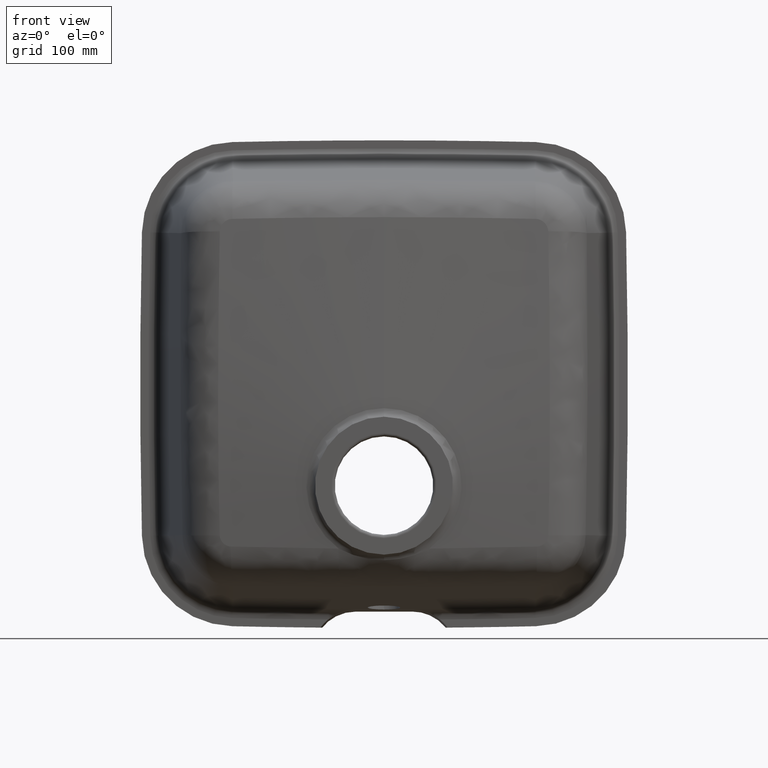
[diagram: clean part render]
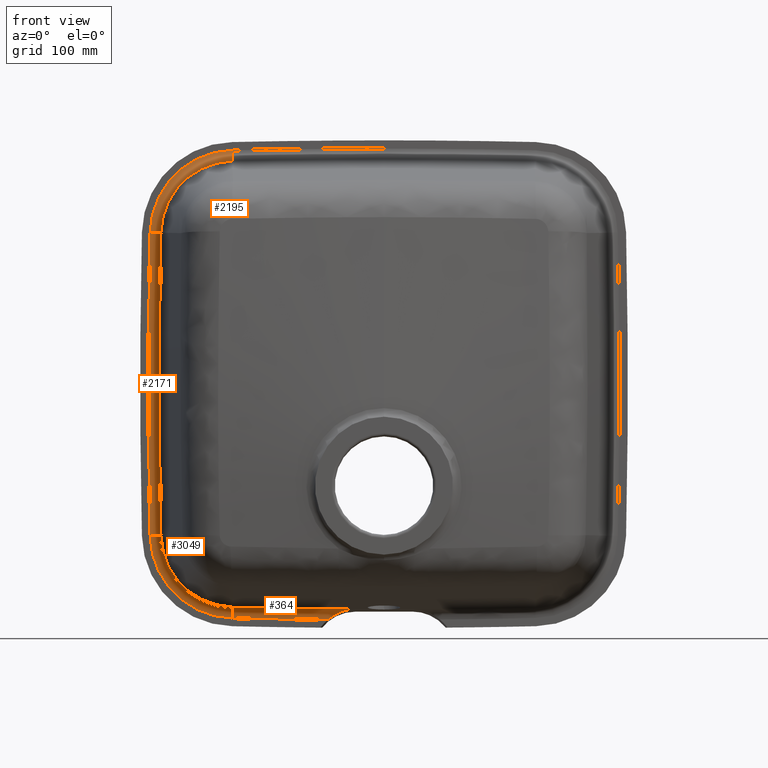
[diagram: same view with one multi-face feature highlighted, each face labeled with its STEP entity id]
A machine part, front view. The highlighted faces form ONE feature: a constant-radius fillet chain: 4 tangent blend faces with common blend radius 10 mm. The faces share edges in the B-rep.
Their STEP definitions:
[1] entity #2195 (Torus):
#46 = CIRCLE ( 'NONE', #2565, 10.00000000000000700 ) ;
#61 = CARTESIAN_POINT ( 'NONE',  ( -139.6885706518969000, 196.0000000000000000, 215.3918085507889100 ) ) ;
#184 = VERTEX_POINT ( 'NONE', #3569 ) ;
#319 = EDGE_CURVE ( 'NONE', #3838, #184, #4029, .T. ) ;
#448 = DIRECTION ( 'NONE',  ( 0.9997515135550633100, -6.712419017838286700E-016, 0.02229150386044505600 ) ) ;
#590 = CIRCLE ( 'NONE', #4128, 77.44893616931270200 ) ;
#749 = DIRECTION ( 'NONE',  ( 0.02229150386044430000, 0.0000000000000000000, -0.9997515135550632000 ) ) ;
#779 = DIRECTION ( 'NONE',  ( -0.0000000000000000000, -1.000000000000000000, -0.0000000000000000000 ) ) ;
#1084 = CARTESIAN_POINT ( 'NONE',  ( -137.9621173922873500, 187.2186934340514900, 137.9621173922891400 ) ) ;
#1142 = CARTESIAN_POINT ( 'NONE',  ( -215.3918085507872900, 186.0000000000000000, 139.6885706518918700 ) ) ;
#1339 = ORIENTED_EDGE ( 'NONE', *, *, #1546, .F. ) ;
#1394 = CIRCLE ( 'NONE', #2663, 67.52347465289948000 ) ;
#1400 = CARTESIAN_POINT ( 'NONE',  ( -137.9621173922873500, 186.0000000000000000, 137.9621173922891400 ) ) ;
#1415 = CARTESIAN_POINT ( 'NONE',  ( -137.9621173922873500, 196.0000000000000000, 137.9621173922891400 ) ) ;
#1546 = EDGE_CURVE ( 'NONE', #184, #1625, #590, .T. ) ;
#1553 = AXIS2_PLACEMENT_3D ( 'NONE', #1142, #3585, #4338 ) ;
#1625 = VERTEX_POINT ( 'NONE', #61 ) ;
#1713 = ORIENTED_EDGE ( 'NONE', *, *, #3995, .F. ) ;
#1791 = DIRECTION ( 'NONE',  ( 0.0000000000000000000, 0.0000000000000000000, 1.000000000000000000 ) ) ;
#1834 = DIRECTION ( 'NONE',  ( 0.0000000000000000000, 0.0000000000000000000, 1.000000000000000000 ) ) ;
#1914 = AXIS2_PLACEMENT_3D ( 'NONE', #1400, #2208, #4296 ) ;
#2043 = ORIENTED_EDGE ( 'NONE', *, *, #2355, .T. ) ;
#2195 = ADVANCED_FACE ( 'NONE', ( #2436 ), #3040, .F. ) ;
#2208 = DIRECTION ( 'NONE',  ( 0.0000000000000000000, 1.000000000000000000, 0.0000000000000000000 ) ) ;
#2355 = EDGE_CURVE ( 'NONE', #3795, #1625, #46, .T. ) ;
#2436 = FACE_OUTER_BOUND ( 'NONE', #3238, .T. ) ;
#2565 = AXIS2_PLACEMENT_3D ( 'NONE', #3263, #448, #749 ) ;
#2663 = AXIS2_PLACEMENT_3D ( 'NONE', #1084, #779, #1834 ) ;
#2950 = CARTESIAN_POINT ( 'NONE',  ( -139.4673171881870500, 187.2186934340514900, 205.4688133770222600 ) ) ;
#3040 = TOROIDAL_SURFACE ( 'NONE', #1914, 77.44893616931270200, 10.00000000000000000 ) ;
#3238 = EDGE_LOOP ( 'NONE', ( #2043, #1339, #3862, #1713 ) ) ;
#3263 = CARTESIAN_POINT ( 'NONE',  ( -139.6885706518969000, 185.9999999999999100, 215.3918085507889700 ) ) ;
#3569 = CARTESIAN_POINT ( 'NONE',  ( -215.3918085507872600, 196.0000000000000000, 139.6885706518922100 ) ) ;
#3585 = DIRECTION ( 'NONE',  ( 0.02229150386041323400, -3.613515370281048100E-014, 0.9997515135550639800 ) ) ;
#3795 = VERTEX_POINT ( 'NONE', #2950 ) ;
#3838 = VERTEX_POINT ( 'NONE', #4348 ) ;
#3862 = ORIENTED_EDGE ( 'NONE', *, *, #319, .F. ) ;
#3995 = EDGE_CURVE ( 'NONE', #3795, #3838, #1394, .T. ) ;
#4029 = CIRCLE ( 'NONE', #1553, 10.00000000000000000 ) ;
#4128 = AXIS2_PLACEMENT_3D ( 'NONE', #1415, #4216, #1791 ) ;
#4216 = DIRECTION ( 'NONE',  ( 0.0000000000000000000, 1.000000000000000000, 0.0000000000000000000 ) ) ;
#4296 = DIRECTION ( 'NONE',  ( 0.0000000000000000000, 0.0000000000000000000, 1.000000000000000000 ) ) ;
#4338 = DIRECTION ( 'NONE',  ( 0.9997515135550638600, 0.0000000000000000000, -0.02229150386041378600 ) ) ;
#4348 = CARTESIAN_POINT ( 'NONE',  ( -205.4688133770206900, 187.2186934340514900, 139.4673171881823900 ) ) ;
[2] entity #2171 (Torus):
#3 = DIRECTION ( 'NONE',  ( 0.0000000000000000000, 0.0000000000000000000, 1.000000000000000000 ) ) ;
#112 = ORIENTED_EDGE ( 'NONE', *, *, #512, .F. ) ;
#184 = VERTEX_POINT ( 'NONE', #3569 ) ;
#214 = VERTEX_POINT ( 'NONE', #3548 ) ;
#319 = EDGE_CURVE ( 'NONE', #3838, #184, #4029, .T. ) ;
#512 = EDGE_CURVE ( 'NONE', #2159, #184, #3765, .T. ) ;
#674 = DIRECTION ( 'NONE',  ( -0.0000000000000000000, -1.000000000000000000, -0.0000000000000000000 ) ) ;
#790 = CARTESIAN_POINT ( 'NONE',  ( 6049.500000000000000, 196.0000000000000000, 5.443532267332566500E-014 ) ) ;
#1040 = DIRECTION ( 'NONE',  ( 0.0000000000000000000, 0.0000000000000000000, 1.000000000000000000 ) ) ;
#1087 = DIRECTION ( 'NONE',  ( 0.02229150386044519800, 0.0000000000000000000, -0.9997515135550632000 ) ) ;
#1142 = CARTESIAN_POINT ( 'NONE',  ( -215.3918085507872900, 186.0000000000000000, 139.6885706518918700 ) ) ;
#1430 = CARTESIAN_POINT ( 'NONE',  ( 6049.500000000000000, 186.0000000000000000, 5.443532267332566500E-014 ) ) ;
#1553 = AXIS2_PLACEMENT_3D ( 'NONE', #1142, #3585, #4338 ) ;
#1653 = EDGE_CURVE ( 'NONE', #2159, #214, #3260, .T. ) ;
#1657 = AXIS2_PLACEMENT_3D ( 'NONE', #2777, #674, #3 ) ;
#1658 = AXIS2_PLACEMENT_3D ( 'NONE', #3186, #1087, #2236 ) ;
#1725 = TOROIDAL_SURFACE ( 'NONE', #2339, 6266.448936169313100, 10.00000000000000000 ) ;
#1750 = CARTESIAN_POINT ( 'NONE',  ( -215.3918085507870900, 196.0000000000000000, -139.6885706518942200 ) ) ;
#1926 = ORIENTED_EDGE ( 'NONE', *, *, #1653, .T. ) ;
#2146 = ORIENTED_EDGE ( 'NONE', *, *, #319, .T. ) ;
#2159 = VERTEX_POINT ( 'NONE', #1750 ) ;
#2171 = ADVANCED_FACE ( 'NONE', ( #4480 ), #1725, .F. ) ;
#2236 = DIRECTION ( 'NONE',  ( -0.9997515135550632000, 0.0000000000000000000, -0.02229150386044430000 ) ) ;
#2339 = AXIS2_PLACEMENT_3D ( 'NONE', #1430, #4206, #1040 ) ;
#2432 = CIRCLE ( 'NONE', #1657, 6256.523474652900400 ) ;
#2777 = CARTESIAN_POINT ( 'NONE',  ( 6049.500000000000000, 187.2186934340515200, 5.443532267332566500E-014 ) ) ;
#3186 = CARTESIAN_POINT ( 'NONE',  ( -215.3918085507870900, 186.0000000000000000, -139.6885706518942200 ) ) ;
#3208 = DIRECTION ( 'NONE',  ( 0.0000000000000000000, 0.0000000000000000000, 1.000000000000000000 ) ) ;
#3260 = CIRCLE ( 'NONE', #1658, 10.00000000000000700 ) ;
#3382 = EDGE_CURVE ( 'NONE', #3838, #214, #2432, .T. ) ;
#3417 = AXIS2_PLACEMENT_3D ( 'NONE', #790, #3616, #3208 ) ;
#3548 = CARTESIAN_POINT ( 'NONE',  ( -205.4688133770204700, 187.2186934340514900, -139.4673171881843800 ) ) ;
#3569 = CARTESIAN_POINT ( 'NONE',  ( -215.3918085507872600, 196.0000000000000000, 139.6885706518922100 ) ) ;
#3585 = DIRECTION ( 'NONE',  ( 0.02229150386041323400, -3.613515370281048100E-014, 0.9997515135550639800 ) ) ;
#3616 = DIRECTION ( 'NONE',  ( 0.0000000000000000000, 1.000000000000000000, 0.0000000000000000000 ) ) ;
#3649 = EDGE_LOOP ( 'NONE', ( #1926, #4287, #2146, #112 ) ) ;
#3765 = CIRCLE ( 'NONE', #3417, 6266.448936169313100 ) ;
#3838 = VERTEX_POINT ( 'NONE', #4348 ) ;
#4029 = CIRCLE ( 'NONE', #1553, 10.00000000000000000 ) ;
#4206 = DIRECTION ( 'NONE',  ( 0.0000000000000000000, 1.000000000000000000, 0.0000000000000000000 ) ) ;
#4287 = ORIENTED_EDGE ( 'NONE', *, *, #3382, .F. ) ;
#4338 = DIRECTION ( 'NONE',  ( 0.9997515135550638600, 0.0000000000000000000, -0.02229150386041378600 ) ) ;
#4348 = CARTESIAN_POINT ( 'NONE',  ( -205.4688133770206900, 187.2186934340514900, 139.4673171881823900 ) ) ;
#4480 = FACE_OUTER_BOUND ( 'NONE', #3649, .T. ) ;
[3] entity #3049 (Torus):
#84 = DIRECTION ( 'NONE',  ( 0.0000000000000000000, 0.0000000000000000000, 1.000000000000000000 ) ) ;
#214 = VERTEX_POINT ( 'NONE', #3548 ) ;
#260 = EDGE_LOOP ( 'NONE', ( #2401, #3299, #884, #3690 ) ) ;
#281 = EDGE_CURVE ( 'NONE', #214, #3242, #4450, .T. ) ;
#406 = AXIS2_PLACEMENT_3D ( 'NONE', #3592, #1113, #84 ) ;
#884 = ORIENTED_EDGE ( 'NONE', *, *, #1653, .F. ) ;
#1087 = DIRECTION ( 'NONE',  ( 0.02229150386044519800, 0.0000000000000000000, -0.9997515135550632000 ) ) ;
#1113 = DIRECTION ( 'NONE',  ( 0.0000000000000000000, 1.000000000000000000, 0.0000000000000000000 ) ) ;
#1294 = DIRECTION ( 'NONE',  ( 0.0000000000000000000, 0.0000000000000000000, 1.000000000000000000 ) ) ;
#1326 = EDGE_CURVE ( 'NONE', #1492, #2159, #1498, .T. ) ;
#1492 = VERTEX_POINT ( 'NONE', #2052 ) ;
#1498 = CIRCLE ( 'NONE', #3540, 77.44893616931302900 ) ;
#1653 = EDGE_CURVE ( 'NONE', #2159, #214, #3260, .T. ) ;
#1658 = AXIS2_PLACEMENT_3D ( 'NONE', #3186, #1087, #2236 ) ;
#1750 = CARTESIAN_POINT ( 'NONE',  ( -215.3918085507870900, 196.0000000000000000, -139.6885706518942200 ) ) ;
#1846 = CARTESIAN_POINT ( 'NONE',  ( -137.9621173922869300, 187.2186934340514900, -137.9621173922886900 ) ) ;
#2052 = CARTESIAN_POINT ( 'NONE',  ( -139.6885706518830500, 196.0000000000000000, -215.3918085507891100 ) ) ;
#2105 = CARTESIAN_POINT ( 'NONE',  ( -139.6885706518830500, 186.0000000000000000, -215.3918085507891100 ) ) ;
#2159 = VERTEX_POINT ( 'NONE', #1750 ) ;
#2236 = DIRECTION ( 'NONE',  ( -0.9997515135550632000, 0.0000000000000000000, -0.02229150386044430000 ) ) ;
#2312 = CARTESIAN_POINT ( 'NONE',  ( -139.4673171881744600, 187.2186934340514000, -205.4688133770224600 ) ) ;
#2401 = ORIENTED_EDGE ( 'NONE', *, *, #3626, .T. ) ;
#2467 = DIRECTION ( 'NONE',  ( -0.02229150386032217500, 0.0000000000000000000, -0.9997515135550658600 ) ) ;
#2812 = DIRECTION ( 'NONE',  ( 0.9997515135550660800, 0.0000000000000000000, -0.02229150386032222400 ) ) ;
#2888 = DIRECTION ( 'NONE',  ( -0.0000000000000000000, -1.000000000000000000, -0.0000000000000000000 ) ) ;
#2959 = AXIS2_PLACEMENT_3D ( 'NONE', #1846, #2888, #3921 ) ;
#3005 = DIRECTION ( 'NONE',  ( 0.0000000000000000000, 1.000000000000000000, 0.0000000000000000000 ) ) ;
#3049 = ADVANCED_FACE ( 'NONE', ( #3418 ), #4420, .F. ) ;
#3186 = CARTESIAN_POINT ( 'NONE',  ( -215.3918085507870900, 186.0000000000000000, -139.6885706518942200 ) ) ;
#3205 = CIRCLE ( 'NONE', #4127, 10.00000000000000700 ) ;
#3242 = VERTEX_POINT ( 'NONE', #2312 ) ;
#3260 = CIRCLE ( 'NONE', #1658, 10.00000000000000700 ) ;
#3299 = ORIENTED_EDGE ( 'NONE', *, *, #281, .F. ) ;
#3381 = CARTESIAN_POINT ( 'NONE',  ( -137.9621173922869300, 196.0000000000000000, -137.9621173922886900 ) ) ;
#3418 = FACE_OUTER_BOUND ( 'NONE', #260, .T. ) ;
#3540 = AXIS2_PLACEMENT_3D ( 'NONE', #3381, #3005, #1294 ) ;
#3548 = CARTESIAN_POINT ( 'NONE',  ( -205.4688133770204700, 187.2186934340514900, -139.4673171881843800 ) ) ;
#3592 = CARTESIAN_POINT ( 'NONE',  ( -137.9621173922869300, 186.0000000000000000, -137.9621173922886900 ) ) ;
#3626 = EDGE_CURVE ( 'NONE', #1492, #3242, #3205, .T. ) ;
#3690 = ORIENTED_EDGE ( 'NONE', *, *, #1326, .F. ) ;
#3921 = DIRECTION ( 'NONE',  ( 0.0000000000000000000, 0.0000000000000000000, 1.000000000000000000 ) ) ;
#4127 = AXIS2_PLACEMENT_3D ( 'NONE', #2105, #2812, #2467 ) ;
#4420 = TOROIDAL_SURFACE ( 'NONE', #406, 77.44893616931302900, 10.00000000000000000 ) ;
#4450 = CIRCLE ( 'NONE', #2959, 67.52347465289983600 ) ;
[4] entity #364 (Torus):
#78 = ORIENTED_EDGE ( 'NONE', *, *, #3591, .F. ) ;
#229 = CARTESIAN_POINT ( 'NONE',  ( -4.161160450726417500E-014, 187.2186934340514000, 6049.500000000000000 ) ) ;
#346 = EDGE_CURVE ( 'NONE', #3242, #1931, #443, .T. ) ;
#364 = ADVANCED_FACE ( 'NONE', ( #541 ), #2470, .F. ) ;
#443 = CIRCLE ( 'NONE', #901, 6256.523474652903100 ) ;
#541 = FACE_OUTER_BOUND ( 'NONE', #4388, .T. ) ;
#546 = DIRECTION ( 'NONE',  ( 0.0000000000000000000, 1.000000000000000000, 0.0000000000000000000 ) ) ;
#601 = ORIENTED_EDGE ( 'NONE', *, *, #4120, .T. ) ;
#616 = CARTESIAN_POINT ( 'NONE',  ( -51.42798237357649800, 196.0000000000000000, -216.7379010253452000 ) ) ;
#854 = CIRCLE ( 'NONE', #1081, 6266.448936169314900 ) ;
#883 = CARTESIAN_POINT ( 'NONE',  ( -10.17543420379503500, 187.7514351898620900, -207.0919713548124200 ) ) ;
#901 = AXIS2_PLACEMENT_3D ( 'NONE', #229, #4063, #1998 ) ;
#944 = CARTESIAN_POINT ( 'NONE',  ( -30.51475350164628600, 188.6488483864490600, -207.2304599425156900 ) ) ;
#962 = CARTESIAN_POINT ( 'NONE',  ( -50.58458904327205400, 196.0000000000000600, -216.0593181082742800 ) ) ;
#987 = CARTESIAN_POINT ( 'NONE',  ( -33.28215405983145600, 190.2038664490380900, -207.7831773983892800 ) ) ;
#1081 = AXIS2_PLACEMENT_3D ( 'NONE', #2163, #1450, #1106 ) ;
#1106 = DIRECTION ( 'NONE',  ( 0.0000000000000000000, 0.0000000000000000000, 1.000000000000000000 ) ) ;
#1148 = CARTESIAN_POINT ( 'NONE',  ( -9.886825323674321100, 188.0000000000000000, -207.1431655609057400 ) ) ;
#1217 = CARTESIAN_POINT ( 'NONE',  ( -10.45401100430805400, 187.4911174785559600, -207.0481961346340500 ) ) ;
#1306 = CARTESIAN_POINT ( 'NONE',  ( -42.56675250623141700, 194.2160892918348100, -211.0759706092461300 ) ) ;
#1321 = CARTESIAN_POINT ( 'NONE',  ( -41.64817706084203800, 193.8884630466568200, -210.6410915847213200 ) ) ;
#1355 = CARTESIAN_POINT ( 'NONE',  ( -38.88348369628700900, 192.8281444981004100, -209.4438151011032700 ) ) ;
#1450 = DIRECTION ( 'NONE',  ( 0.0000000000000000000, 1.000000000000000000, 0.0000000000000000000 ) ) ;
#1492 = VERTEX_POINT ( 'NONE', #2052 ) ;
#1643 = CARTESIAN_POINT ( 'NONE',  ( -49.72919372923983200, 195.9303515179062200, -215.4164689665431400 ) ) ;
#1660 = CARTESIAN_POINT ( 'NONE',  ( -30.73901536876321200, 188.7908977514895000, -207.2697030102976300 ) ) ;
#1690 = CARTESIAN_POINT ( 'NONE',  ( -45.31265118942361200, 195.0607792423480500, -212.5440073953511700 ) ) ;
#1760 = VERTEX_POINT ( 'NONE', #3603 ) ;
#1822 = DIRECTION ( 'NONE',  ( 0.0000000000000000000, 0.0000000000000000000, -1.000000000000000000 ) ) ;
#1897 = CARTESIAN_POINT ( 'NONE',  ( -9.886825323674321100, 188.0000000000000000, -207.1431655609057400 ) ) ;
#1931 = VERTEX_POINT ( 'NONE', #3723 ) ;
#1979 = DIRECTION ( 'NONE',  ( 0.0000000000000000000, 0.0000000000000000000, 1.000000000000000000 ) ) ;
#1998 = DIRECTION ( 'NONE',  ( 0.0000000000000000000, 0.0000000000000000000, 1.000000000000000000 ) ) ;
#2035 = VERTEX_POINT ( 'NONE', #616 ) ;
#2047 = CARTESIAN_POINT ( 'NONE',  ( -34.22002531497675900, 190.6753383914086400, -208.0117202614997900 ) ) ;
#2052 = CARTESIAN_POINT ( 'NONE',  ( -139.6885706518830500, 196.0000000000000000, -215.3918085507891100 ) ) ;
#2067 = B_SPLINE_CURVE_WITH_KNOTS ( 'NONE', 3,
 ( #1148, #883, #1217, #2986 ),
 .UNSPECIFIED., .F., .F.,
 ( 4, 4 ),
 ( 0.02458393145967202300, 0.02573846673329467600 ),
 .UNSPECIFIED. ) ;
#2105 = CARTESIAN_POINT ( 'NONE',  ( -139.6885706518830500, 186.0000000000000000, -215.3918085507891100 ) ) ;
#2163 = CARTESIAN_POINT ( 'NONE',  ( -4.161160450726417500E-014, 196.0000000000000000, 6049.500000000000000 ) ) ;
#2312 = CARTESIAN_POINT ( 'NONE',  ( -139.4673171881744600, 187.2186934340514000, -205.4688133770224600 ) ) ;
#2314 = ORIENTED_EDGE ( 'NONE', *, *, #346, .F. ) ;
#2402 = VERTEX_POINT ( 'NONE', #1897 ) ;
#2467 = DIRECTION ( 'NONE',  ( -0.02229150386032217500, 0.0000000000000000000, -0.9997515135550658600 ) ) ;
#2470 = TOROIDAL_SURFACE ( 'NONE', #3565, 6266.448936169314900, 10.00000000000000000 ) ;
#2475 = ORIENTED_EDGE ( 'NONE', *, *, #3626, .F. ) ;
#2544 = DIRECTION ( 'NONE',  ( 0.0000000000000000000, 1.000000000000000000, 0.0000000000000000000 ) ) ;
#2579 = AXIS2_PLACEMENT_3D ( 'NONE', #3916, #2544, #1822 ) ;
#2606 = EDGE_CURVE ( 'NONE', #2035, #1760, #2997, .T. ) ;
#2701 = CARTESIAN_POINT ( 'NONE',  ( -43.94217755096259000, 194.6599191363882500, -211.7862415615264500 ) ) ;
#2719 = CARTESIAN_POINT ( 'NONE',  ( -31.41888806066922500, 189.2037191585276600, -207.3927780188964200 ) ) ;
#2731 = CARTESIAN_POINT ( 'NONE',  ( -29.86268470210133300, 188.1870802151730100, -207.1179013617316700 ) ) ;
#2812 = DIRECTION ( 'NONE',  ( 0.9997515135550660800, 0.0000000000000000000, -0.02229150386032222400 ) ) ;
#2986 = CARTESIAN_POINT ( 'NONE',  ( -10.72256618829245200, 187.2186934340520600, -207.0142863624268200 ) ) ;
#2997 = B_SPLINE_CURVE_WITH_KNOTS ( 'NONE', 3,
 ( #4487, #962, #1643, #3776, #3405, #4438, #1690, #3084, #2701, #1306, #1321, #1355, #3749, #3047, #2047, #987, #4412, #3073, #2719, #1660, #944, #3436, #2731, #4098 ),
 .UNSPECIFIED., .F., .F.,
 ( 4, 2, 2, 2, 2, 2, 2, 2, 2, 2, 2, 4 ),
 ( 1.152775633689050800E-016, 0.003202783952042220900, 0.006405567904084326500, 0.008006959880105399300, 0.009608351856126472900, 0.01281113580816867700, 0.01921670371225306000, 0.02081809568827415800, 0.02241948766429525300, 0.02402087964031635000, 0.02482157562832689900, 0.02562227161633745500 ),
 .UNSPECIFIED. ) ;
#3026 = ORIENTED_EDGE ( 'NONE', *, *, #4044, .F. ) ;
#3047 = CARTESIAN_POINT ( 'NONE',  ( -34.68858241088997800, 190.9044226723668500, -208.1341876594303800 ) ) ;
#3073 = CARTESIAN_POINT ( 'NONE',  ( -31.88156247532288700, 189.4612013475752400, -207.4819610932551900 ) ) ;
#3084 = CARTESIAN_POINT ( 'NONE',  ( -44.40143808621214600, 194.8002091603892400, -212.0333586479586100 ) ) ;
#3205 = CIRCLE ( 'NONE', #4127, 10.00000000000000700 ) ;
#3242 = VERTEX_POINT ( 'NONE', #2312 ) ;
#3405 = CARTESIAN_POINT ( 'NONE',  ( -47.10940867688332600, 195.5094614197681700, -213.6221790731117900 ) ) ;
#3436 = CARTESIAN_POINT ( 'NONE',  ( -30.07718899633239900, 188.3459844872266400, -207.1544648577403800 ) ) ;
#3565 = AXIS2_PLACEMENT_3D ( 'NONE', #4381, #546, #1979 ) ;
#3591 = EDGE_CURVE ( 'NONE', #2035, #1492, #854, .T. ) ;
#3603 = CARTESIAN_POINT ( 'NONE',  ( -29.66549768409803500, 188.0000000000000000, -207.0806483032026200 ) ) ;
#3626 = EDGE_CURVE ( 'NONE', #1492, #3242, #3205, .T. ) ;
#3723 = CARTESIAN_POINT ( 'NONE',  ( -10.72256618829245200, 187.2186934340520600, -207.0142863624268200 ) ) ;
#3749 = CARTESIAN_POINT ( 'NONE',  ( -37.02725435579640800, 192.0213364599001700, -208.7881747745406400 ) ) ;
#3776 = CARTESIAN_POINT ( 'NONE',  ( -47.99158693021726000, 195.6852317452826600, -214.1978860683261400 ) ) ;
#3900 = CIRCLE ( 'NONE', #2579, 6256.650977198182800 ) ;
#3916 = CARTESIAN_POINT ( 'NONE',  ( -4.161160450726417500E-014, 188.0000000000000000, 6049.500000000000000 ) ) ;
#4044 = EDGE_CURVE ( 'NONE', #2402, #1760, #3900, .T. ) ;
#4063 = DIRECTION ( 'NONE',  ( -0.0000000000000000000, -1.000000000000000000, -0.0000000000000000000 ) ) ;
#4098 = CARTESIAN_POINT ( 'NONE',  ( -29.66549768409803500, 188.0000000000000000, -207.0806483032026200 ) ) ;
#4112 = ORIENTED_EDGE ( 'NONE', *, *, #2606, .T. ) ;
#4120 = EDGE_CURVE ( 'NONE', #2402, #1931, #2067, .T. ) ;
#4127 = AXIS2_PLACEMENT_3D ( 'NONE', #2105, #2812, #2467 ) ;
#4381 = CARTESIAN_POINT ( 'NONE',  ( -4.161160450726417500E-014, 186.0000000000000000, 6049.500000000000000 ) ) ;
#4388 = EDGE_LOOP ( 'NONE', ( #3026, #601, #2314, #2475, #78, #4112 ) ) ;
#4412 = CARTESIAN_POINT ( 'NONE',  ( -32.81258506516584100, 189.9615064197569400, -207.6771131649842600 ) ) ;
#4438 = CARTESIAN_POINT ( 'NONE',  ( -45.76453877175234200, 195.1810955460118200, -212.8074366457158800 ) ) ;
#4487 = CARTESIAN_POINT ( 'NONE',  ( -51.42798237357649800, 196.0000000000000000, -216.7379010253452000 ) ) ;